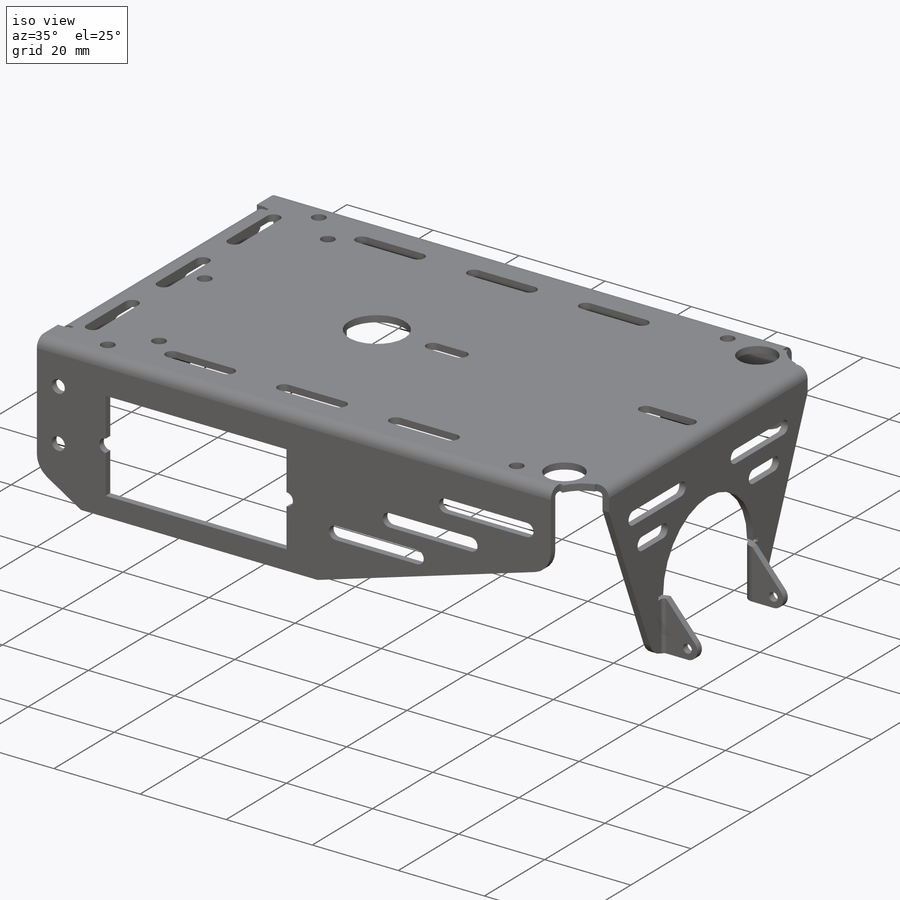
[diagram: iso view]
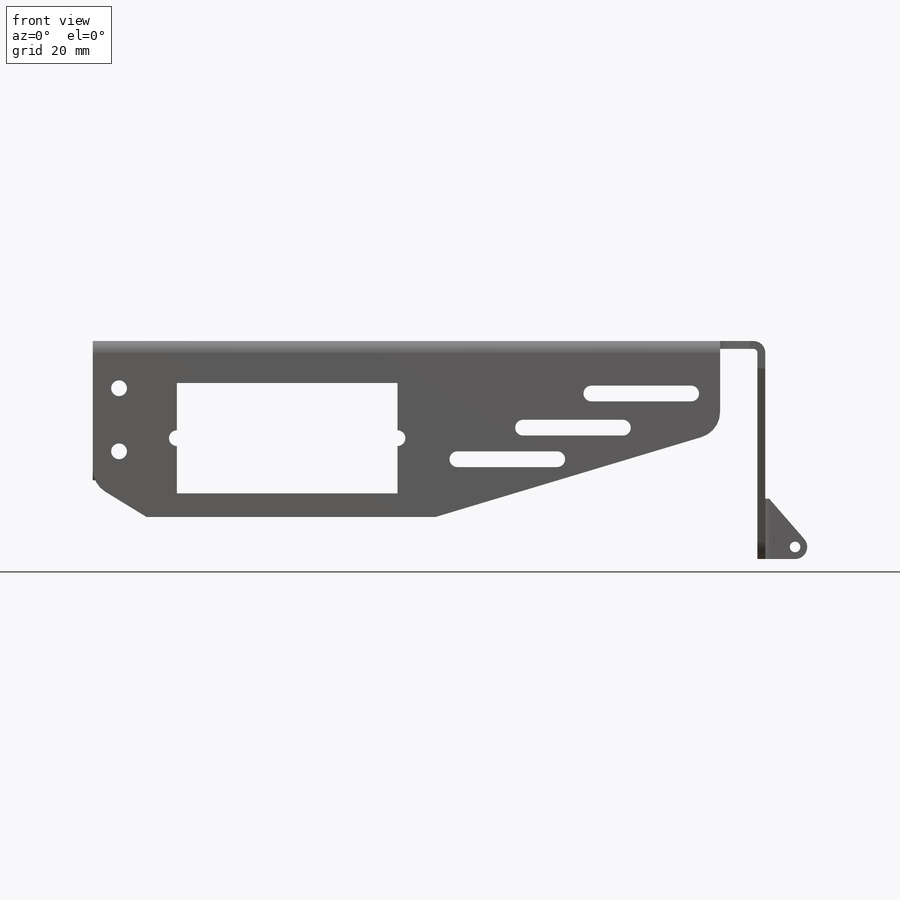
[diagram: front view]
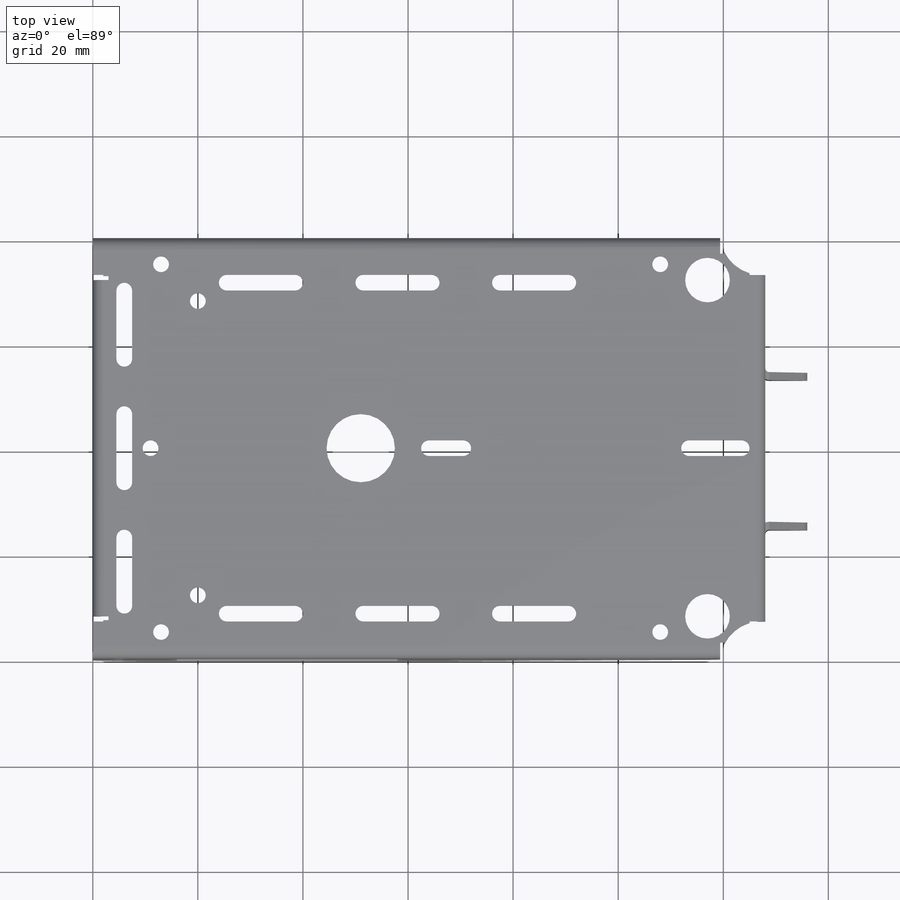
[diagram: top view]
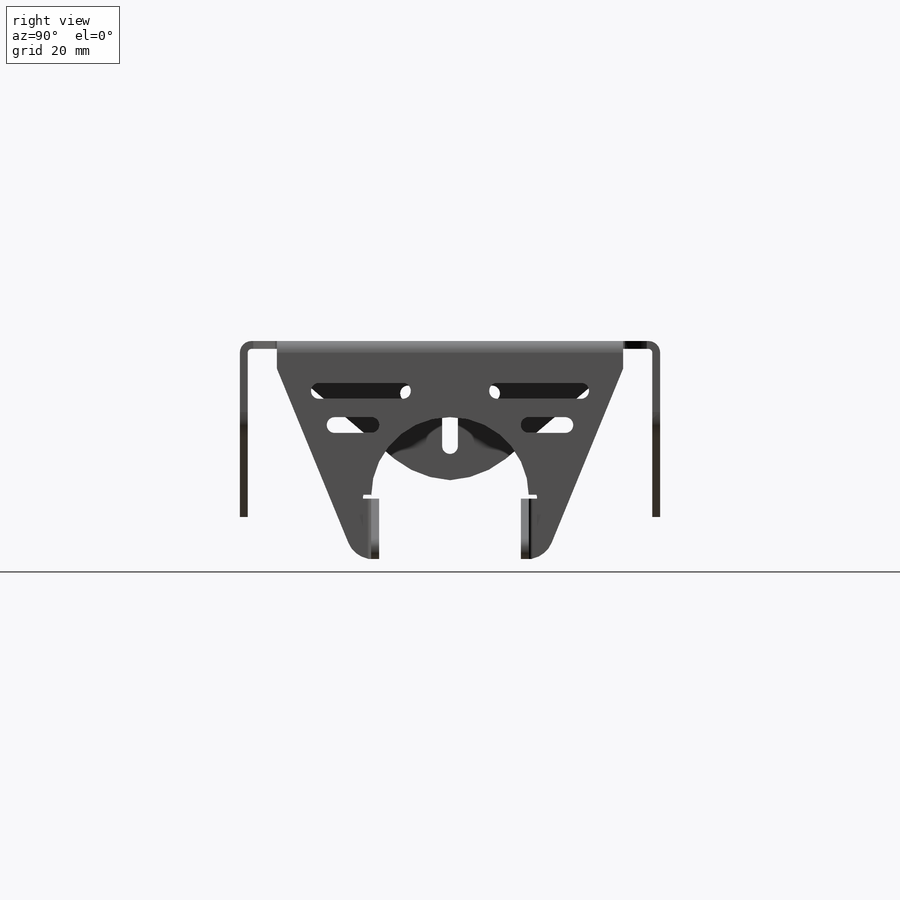
[diagram: right view]
SOLIDWORKS PART (.sldprt)
format: sldprt  version: not decoded by parser v0  size: 993,280 bytes
history: native  units: mm
features: sketch x18, cut_extrude x10, sheet_metal_op x7, fillet x6, material x1 + 1 further entry (+12 scaffold rows collapsed; 1 parser-record rows omitted)
feature tree (56):
  scaffold x12  (default folders/planes/origin — collapsed)
  material  "Material <not specified>"
  sketch  "Sketch2"  dims[c1.D3=8.0mm c1.D6=8.0mm c1.D1=80.0mm c1.D2=128.0mm c1.D4=~80.930422mm c1.D5=~127.338769mm c2.D6=~174.581267mm c3.D6=90.0deg c4.D6=~1570.796327mm c4.D2=128.0mm c4.D4=7.0mm c4.D5=7.0mm c5.D4=7.0mm c5.D5=1.0mm c5.D6=2.0mm]
  sheet_metal_op  "Sheet-Metal1"
  sheet_metal_op  "Base-Flange1"
  sketch  "Sketch16"
  sketch  "Sketch17"  dims[D1=0.7366mm D4=~1570.796327mm D5=1.0 D8=~0.042972deg D9=~0.042972deg]
  sheet_metal_op  "EdgeBend4"  Edge-Flange3=0
  sketch  "Sketch20"
  sheet_metal_op  "EdgeBend5"
  sketch  "Sketch24"  dims[D1=25.0mm D2=12.0mm D3=55.0mm D4=15.0mm]
  cut_extrude  "Extrude1"  [1 undecoded]
  sketch  "Sketch25"  dims[D1=2.0mm]
  cut_extrude  "Extrude7"  Depth=0 Edge-Flange5=0
  sketch  "Sketch28"
  sheet_metal_op  "EdgeBend7"
  sketch  "Sketch29"  dims[c1.D1=27.0mm c1.D2=~3.261216mm c2.D1=12.0mm c2.D2=~23.864872mm]
  cut_extrude  "Extrude9"  Depth=10mm
  sketch  "Sketch30"  dims[D2=5.0mm D1=3.0mm D3=~35.854774mm D4=40.0mm]
  sketch  "Sketch31"  dims[c1.D3=4.0mm c1.D4=4.0mm c1.D5=4.0mm c1.D8=4.0mm c2.D3=2.0mm c2.D5=3.0mm c3.D3=3.0mm c3.D6=1.5mm c3.D9=1.5mm c3.D10=1.5mm c3.D12=13.0mm c3.D14=3.0mm c3.D15=1.5mm c3.D16=1.5mm c3.D19=3.0mm c3.D20=3.0mm c4.D19=1.5mm c4.D22=1.5mm c4.D24=3.0mm c4.D27=3.0mm c4.D30=3.0mm c4.D33=8.5mm c4.D36=3.0mm c4.D37=3.0mm c4.D38=1.5mm c4.D40=1.5mm c4.D42=1.5mm c4.D43=1.5mm c4.D45=1.5mm c4.D46=1.5mm c4.D1=6.0mm c4.D2=40.0mm c4.D3=~119.393059mm c4.D4=12.0mm c4.D6=12.0mm c4.D7=4.0mm c4.D9=6.0mm c4.D8=11.0mm c5.D1=6.0mm c5.D4=10.0mm c5.D7=13.0mm c5.D3=3.0mm c5.D10=16.0mm c5.D11=6.5mm c5.D12=3.0mm c6.D11=6.5mm c6.D12=7.5mm c6.D13=51.0mm c6.D14=6.5mm c6.D17=3.0mm c6.D18=57.5mm c6.D19=56.0mm c6.D20=10.0mm c6.D21=4.5mm c6.D23=3.0mm c6.D25=13.0mm c6.D26=5.0mm c6.D28=20.0mm c6.D29=12.0mm c6.D31=5.0mm c6.D32=20.0mm c6.D34=8.0mm c6.D35=11.0mm c6.D36=13.0mm c6.D37=3.0mm c6.D38=~6.864253mm c6.D39=8.5mm c6.D40=25.5mm c6.D41=13.0mm c6.D42=~4.606509mm c6.D44=8.5mm c6.D47=13.0mm c6.D48=8.5mm c6.D49=13.0mm c6.D50=13.0mm c6.D51=8.5mm c6.D52=10.0mm]
  cut_extrude  "Extrude11"  Depth=6mm
  sketch  "Sketch33"  dims[c1.D1=1.5mm c1.D2=3.0mm c1.D3=3.0mm c1.D4=3.0mm c1.D6=1.5mm c2.D3=1.5mm c2.D4=1.5mm c2.D5=5.0mm c2.D7=13.0mm c2.D8=8.0mm c2.D9=7.0mm c2.D10=6.0mm c2.D11=7.0mm c3.D9=7.0mm c3.D12=1.5mm c3.D13=8.0mm c3.D14=10.0mm]
  cut_extrude  "Extrude12"  Depth=10mm
  sketch  "Sketch34"  dims[c1.D5=1.5mm c1.D6=1.5mm c1.D11=3.0mm c1.D12=3.0mm c1.D17=3.0mm c1.D18=1.5mm c1.D19=1.5mm c1.D21=3.0mm c1.D22=3.0mm c2.D21=1.5mm c2.D22=1.5mm c2.D27=3.0mm c2.D28=1.5mm c2.D29=1.5mm c2.D1=21.0mm c2.D2=42.0mm c2.D3=4.5mm c2.D4=16.0mm c2.D7=15.0mm c2.D8=16.0mm c2.D9=42.0mm c2.D10=15.0mm c2.D13=9.0mm c2.D14=21.0mm c2.D15=5.0mm c2.D16=5.0mm c2.D17=19.0mm c2.D19=10.0mm c2.D20=5.5mm c2.D23=19.0mm c2.D24=16.5mm c2.D25=19.0mm c2.D26=18.5mm c3.D27=19.0mm c3.D30=22.5mm c3.D31=19.0mm c3.D32=31.0mm c3.D33=29.5mm]
  cut_extrude  "Extrude13"  Depth=136mm Edge-Flange6=0
  sketch  "Sketch40"
  sketch  "Sketch41"
  sheet_metal_op  "EdgeBend8"
  sheet_metal_op  "EdgeBend9"
  sketch  "Sketch42"  dims[c1.D1=~2.314077mm c1.D3=~2.314077mm c2.D1=~2.333394mm c2.D2=~2.299032mm c2.D4=~10.043086mm]
  cut_extrude  "Extrude15"  [1 undecoded]
  sketch  "Sketch43"  dims[c1.D1=3.0mm c1.D2=3.0mm c1.D3=3.0mm c1.D4=3.0mm c1.D10=1.5mm c1.D11=1.5mm c1.D5=16.0mm c1.D6=8.0mm c1.D7=9.5mm c1.D8=16.0mm c2.D3=7.0mm c2.D4=11.0mm c2.D9=16.0mm]
  cut_extrude  "Extrude16"  Depth=29mm
  sketch  "Sketch44"  dims[D1=2.0mm]
  cut_extrude  "Extrude17"  Depth=40mm
  fillet  "Fillet1"  Radius=5mm
  cut_extrude  "Extrude18"  Depth=10mm
  "Flat-Pattern1"
  sketch  "Bend-Lines1"
  parser-record x1  (decoder bookkeeping rows leaked as tree rows — omitted from the tree; the rows remain in map.json)
  fillet  "Flatten-<EdgeBend4>1"  [1 undecoded]
  fillet  "Flatten-<EdgeBend5>1"  [1 undecoded]
  fillet  "Flatten-<EdgeBend7>1"  [1 undecoded]
  fillet  "Flatten-<EdgeBend8>1"  [1 undecoded]
  fillet  "Flatten-<EdgeBend9>1"  [1 undecoded]
decode coverage: 22 of 41 modeling features carry decoded parameters; 1 rows unclassified (native names shown)
note: ~ marks probable driven/reference dimensions
note: 7 parameter values undecoded
summary: no parameter record found for 7 features
note: suppression state not decoded; provenance and decode notes live in map.json
